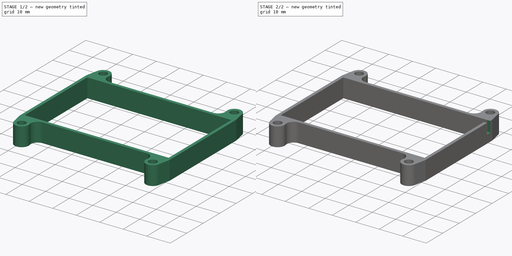
[diagram: build sequence overview — one tinted view per stage of 2, left to right]
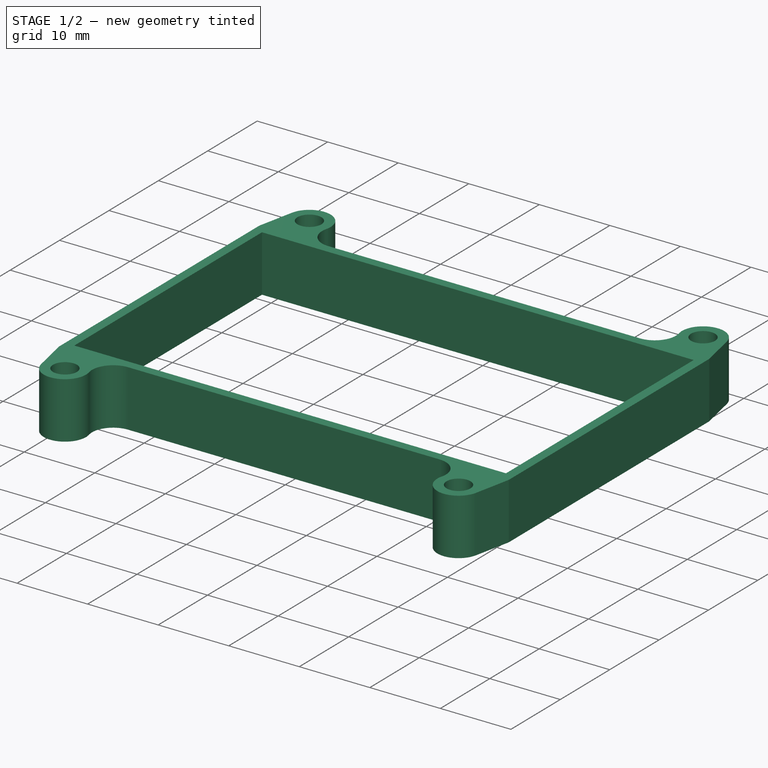
[diagram: stage 1 of 2 — iso view after this stage's code; geometry added in this stage tinted green]
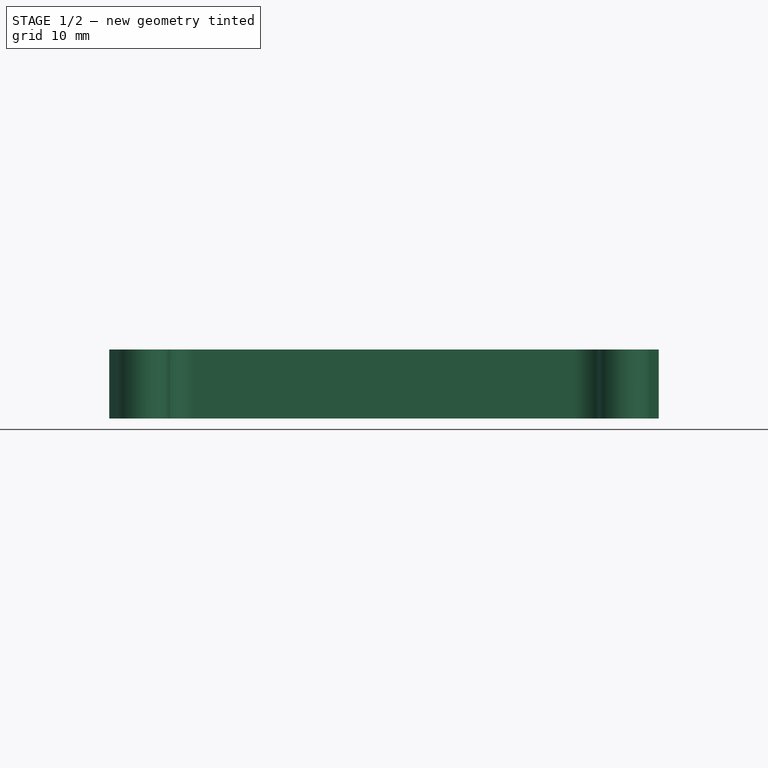
[diagram: stage 1 of 2 — front view after this stage's code; geometry added in this stage tinted green]
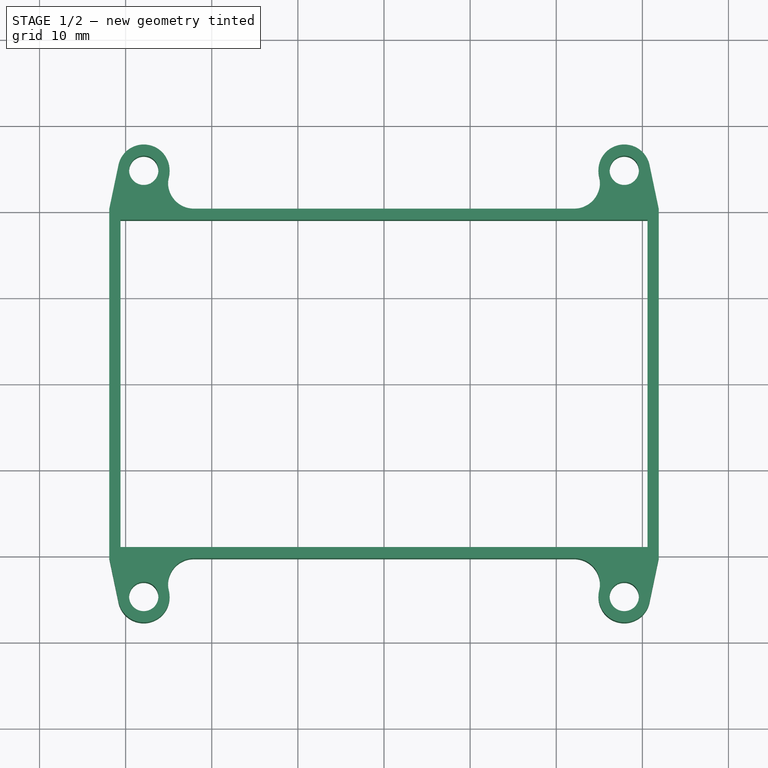
[diagram: stage 1 of 2 — top view after this stage's code; geometry added in this stage tinted green]
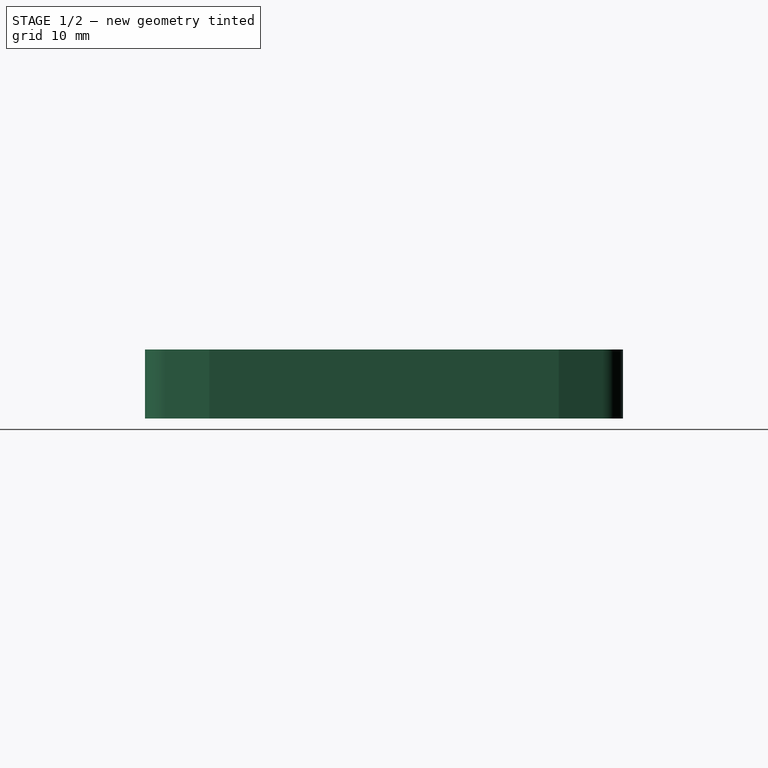
[diagram: stage 1 of 2 — right view after this stage's code; geometry added in this stage tinted green]
FCSTD DOCUMENT  (FreeCAD 0.16R6710 (Git))
Label: LiPo
License: All rights reserved
LicenseURL: http://en.wikipedia.org/wiki/All_rights_reserved
objects: Sketcher::SketchObject×2, PartDesign::Pad×1, PartDesign::Pocket×1
note: 6 computed .brp shape members not serialized (recipe doc carries the construction recipe); baked Part::Feature solids carry a one-line shape summary decoded from their .brp

FEATURE [Sketcher::SketchObject] Sketch
  sketch-geometry (24):
    g0: Circle CenterX=-27.9 CenterY=-24.75 CenterZ=0 NormalX=0 NormalY=0 NormalZ=1 Radius=1.7
    g1: Circle CenterX=27.9 CenterY=-24.75 CenterZ=0 NormalX=0 NormalY=0 NormalZ=1 Radius=1.7
    g2: Circle CenterX=27.9 CenterY=24.75 CenterZ=0 NormalX=0 NormalY=0 NormalZ=1 Radius=1.7
    g3: Circle CenterX=-27.9 CenterY=24.75 CenterZ=0 NormalX=0 NormalY=0 NormalZ=1 Radius=1.7
    g4: LineSegment StartX=-30.6 StartY=-19 StartZ=0 EndX=30.6 EndY=-19 EndZ=0
    g5: LineSegment StartX=30.6 StartY=-19 StartZ=0 EndX=30.6 EndY=19 EndZ=0
    g6: LineSegment StartX=30.6 StartY=19 StartZ=0 EndX=-30.6 EndY=19 EndZ=0
    g7: LineSegment StartX=-30.6 StartY=19 StartZ=0 EndX=-30.6 EndY=-19 EndZ=0
    g8: LineSegment StartX=-31.9 StartY=20.3 StartZ=0 EndX=-31.9 EndY=-20.3 EndZ=0
    g9: LineSegment StartX=31.9 StartY=20.3 StartZ=0 EndX=31.9 EndY=-20.3 EndZ=0
    g10: LineSegment StartX=-22.0778 StartY=20.3 StartZ=0 EndX=22.0778 EndY=20.3 EndZ=0
    g11: LineSegment StartX=22.0778 StartY=-20.3 StartZ=0 EndX=-22.0778 EndY=-20.3 EndZ=0
    g12: ArcOfCircle CenterX=-27.9 CenterY=24.75 CenterZ=0 NormalX=0 NormalY=0 NormalZ=1 Radius=3 StartAngle=6.0391 EndAngle=9.21777
    g13: ArcOfCircle CenterX=-22.0778 CenterY=23.3 CenterZ=0 NormalX=0 NormalY=0 NormalZ=1 Radius=3 StartAngle=2.89751 EndAngle=4.71239
    g14: LineSegment StartX=-31.9 StartY=20.3 StartZ=0 EndX=-30.836 EndY=25.3666 EndZ=0
    g15: ArcOfCircle CenterX=27.9 CenterY=24.75 CenterZ=0 NormalX=0 NormalY=0 NormalZ=1 Radius=3 StartAngle=0.207003 EndAngle=3.38568
    g16: LineSegment StartX=31.9 StartY=20.3 StartZ=0 EndX=30.836 EndY=25.3666 EndZ=0
    g17: ArcOfCircle CenterX=-27.9 CenterY=-24.75 CenterZ=0 NormalX=0 NormalY=0 NormalZ=1 Radius=3 StartAngle=3.3486 EndAngle=6.52727
    g18: ArcOfCircle CenterX=27.9 CenterY=-24.75 CenterZ=0 NormalX=0 NormalY=0 NormalZ=1 Radius=3 StartAngle=2.89751 EndAngle=6.07618
    g19: ArcOfCircle CenterX=22.0778 CenterY=23.3 CenterZ=0 NormalX=0 NormalY=0 NormalZ=1 Radius=3 StartAngle=4.71239 EndAngle=6.52727
    g20: LineSegment StartX=31.9 StartY=-20.3 StartZ=0 EndX=30.836 EndY=-25.3666 EndZ=0
    g21: ArcOfCircle CenterX=22.0778 CenterY=-23.3 CenterZ=0 NormalX=0 NormalY=0 NormalZ=1 Radius=3 StartAngle=6.03911 EndAngle=7.85398
    g22: LineSegment StartX=-31.9 StartY=-20.3 StartZ=0 EndX=-30.836 EndY=-25.3666 EndZ=0
    g23: ArcOfCircle CenterX=-22.0778 CenterY=-23.3 CenterZ=0 NormalX=0 NormalY=0 NormalZ=1 Radius=3 StartAngle=1.5708 EndAngle=3.38567
  constraints (70):
    c: Equal(g2,g3)
    c: Equal(g3,g0)
    c: Equal(g0,g1)
    c: Radius(g1) = 1.7
    c: Symmetric(g0,g1,g-2)
    c: Symmetric(g3,g0,g-1)
    c: Symmetric(g2,g1,g-1)
    c: Distance(g0,g1) = 55.8
    c: Distance(g0,g3) = 49.5
    c: Coincident(g4,g5)
    c: Coincident(g5,g6)
    c: Coincident(g6,g7)
    c: Coincident(g7,g4)
    c: Horizontal(g4)
    c: Horizontal(g6)
    c: Vertical(g5)
    c: Vertical(g7)
    c: Symmetric(g4,g5,g-1)
    c: Distance(g4) = 61.2
    c: Distance(g7) = 38
    c: Vertical(g8)
    c: Vertical(g9)
    c: Horizontal(g10)
    c: Horizontal(g11)
    c: DistanceY(g11,g4) = 1.3
    c: DistanceX(g4,g9) = 1.3
    c: Symmetric(g11,g11,g-2)
    c: Symmetric(g9,g9,g-1)
    c: Symmetric(g10,g11,g-1)
    c: Equal(g10,g11)
    c: Equal(g9,g8)
    c: Symmetric(g8,g9,g-2)
    c: Coincident(g12,g3)
    c: Coincident(g13,g12)
    c: Coincident(g13,g10)
    c: Tangent(g13,g10)
    c: Tangent(g12,g13)
    c: Radius(g12) = 3
    c: PointOnObject(g8,g10)
    c: Radius(g13) = 3
    c: Coincident(g14,g8)
    c: Coincident(g14,g12)
    c: Tangent(g14,g12)
    c: Coincident(g15,g2)
    c: Coincident(g16,g9)
    c: Coincident(g16,g15)
    c: Coincident(g17,g0)
    c: Coincident(g18,g1)
    c: Equal(g17,g18)
    c: Equal(g18,g15)
    c: Equal(g15,g12)
    c: Tangent(g16,g15)
    c: Coincident(g19,g15)
    c: Coincident(g19,g10)
    c: Tangent(g19,g10)
    c: Tangent(g19,g15)
    c: Coincident(g20,g9)
    c: Coincident(g20,g18)
    c: Tangent(g20,g18)
    c: Coincident(g21,g11)
    c: Coincident(g21,g18)
    c: Tangent(g18,g21)
    c: Tangent(g21,g11)
    c: Coincident(g22,g8)
    c: Coincident(g22,g17)
    c: Tangent(g17,g22)
    c: Coincident(g23,g17)
    c: Coincident(g23,g11)
    c: Tangent(g23,g11)
    c: Tangent(g17,g23)
FEATURE [PartDesign::Pad] Pad
  Length = 8
  Length2 = 100
  Sketch = -> Sketch
  Type = 0
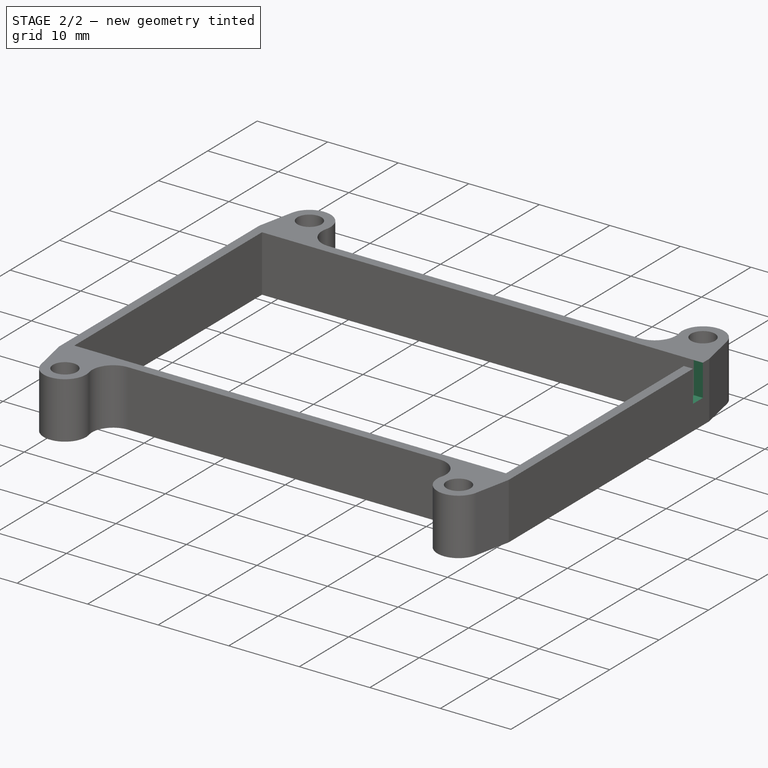
[diagram: stage 2 of 2 — iso view after this stage's code; geometry added in this stage tinted green]
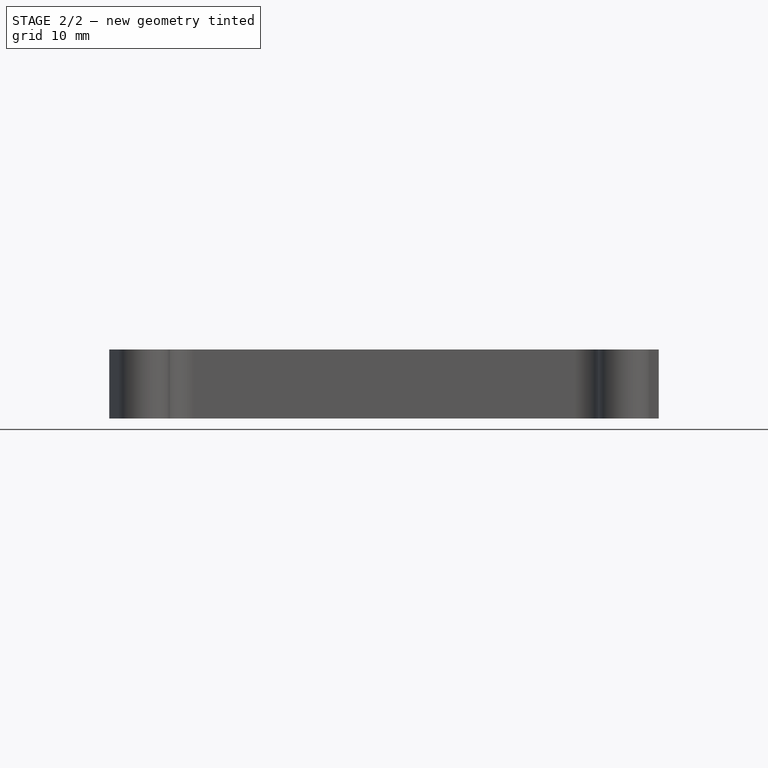
[diagram: stage 2 of 2 — front view after this stage's code; geometry added in this stage tinted green]
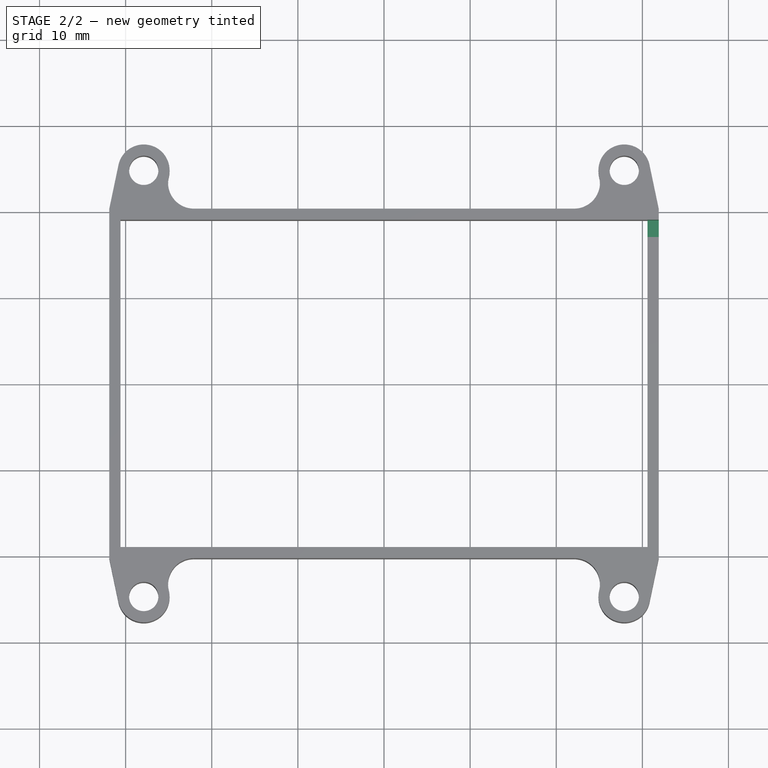
[diagram: stage 2 of 2 — top view after this stage's code; geometry added in this stage tinted green]
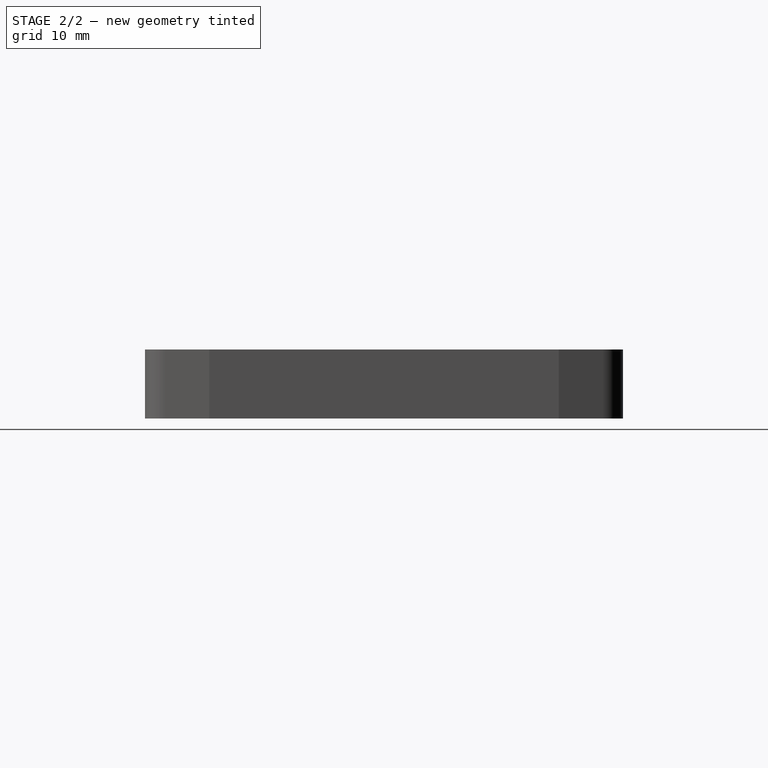
[diagram: stage 2 of 2 — right view after this stage's code; geometry added in this stage tinted green]
FEATURE [Sketcher::SketchObject] Sketch001
  ExternalGeometry = -> [Pad]
  Placement = pos=(31.9,0,0) rot=(0.57735,0.57735,0.57735;2.0944rad)
  Support = -> Pad [Face11]
  sketch-geometry (4):
    g0: LineSegment StartX=19 StartY=8 StartZ=0 EndX=17 EndY=8 EndZ=0
    g1: LineSegment StartX=17 StartY=8 StartZ=0 EndX=17 EndY=3.5 EndZ=0
    g2: LineSegment StartX=17 StartY=3.5 StartZ=0 EndX=19 EndY=3.5 EndZ=0
    g3: LineSegment StartX=19 StartY=3.5 StartZ=0 EndX=19 EndY=8 EndZ=0
  constraints (11):
    c: Coincident(g0,g1)
    c: Coincident(g1,g2)
    c: Coincident(g2,g3)
    c: Coincident(g3,g0)
    c: Horizontal(g0)
    c: Horizontal(g2)
    c: Vertical(g1)
    c: Vertical(g3)
    c: Distance(g0) = 2
    c: Distance(g1) = 4.5
    c: Coincident(g0,g-4)
FEATURE [PartDesign::Pocket] Pocket
  Length = 1.3
  Sketch = -> Sketch001
  Type = 0
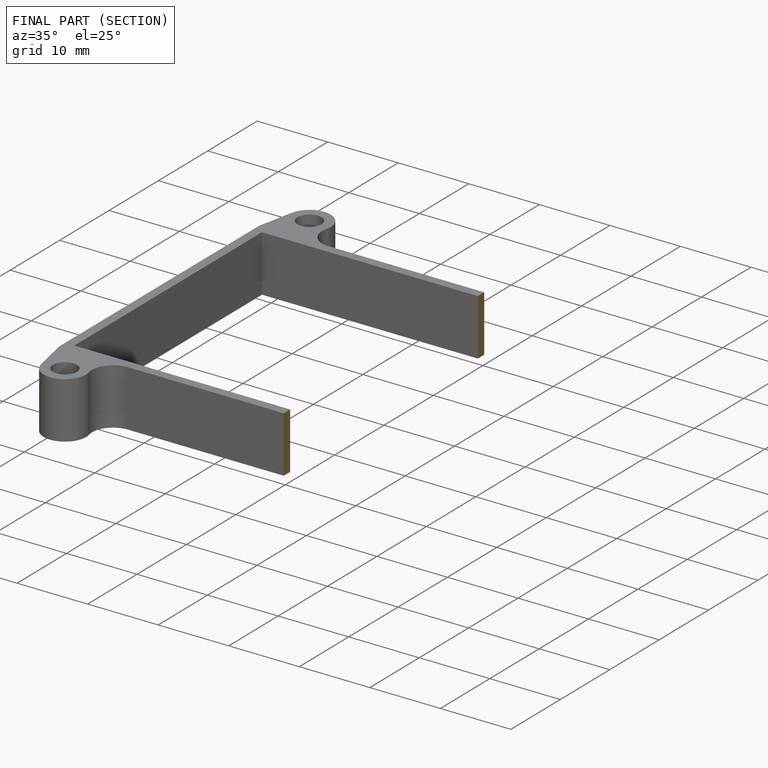
[diagram: finished part — half-section view (interior)]
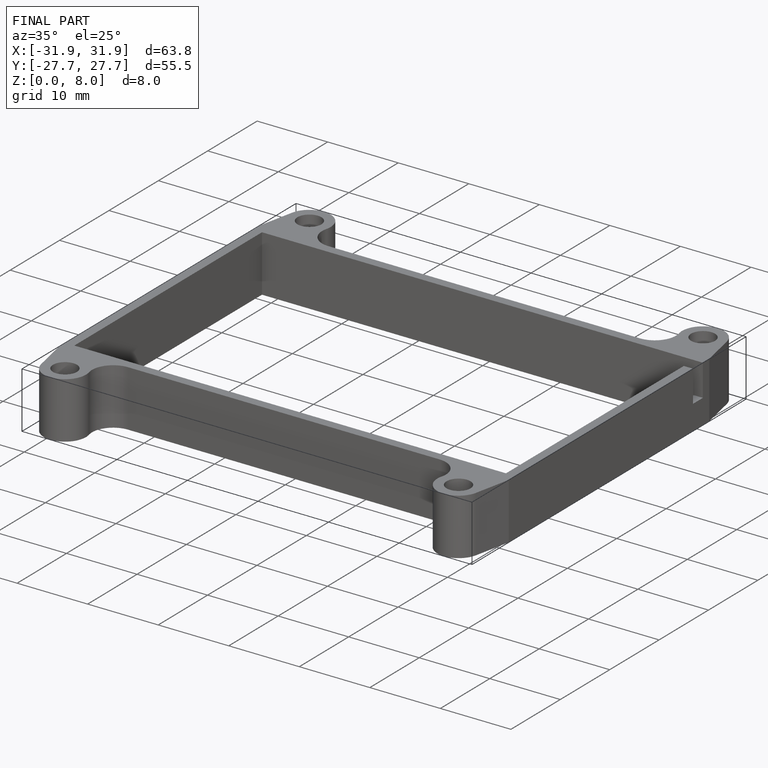
[diagram: finished part — iso view with bounding-box wireframe]
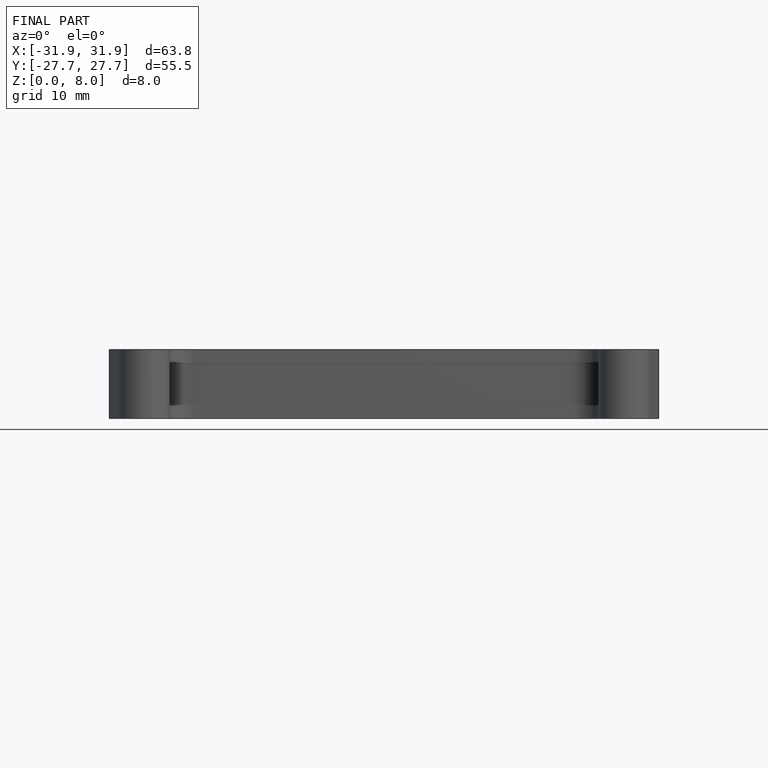
[diagram: finished part — front view with bounding-box wireframe]
